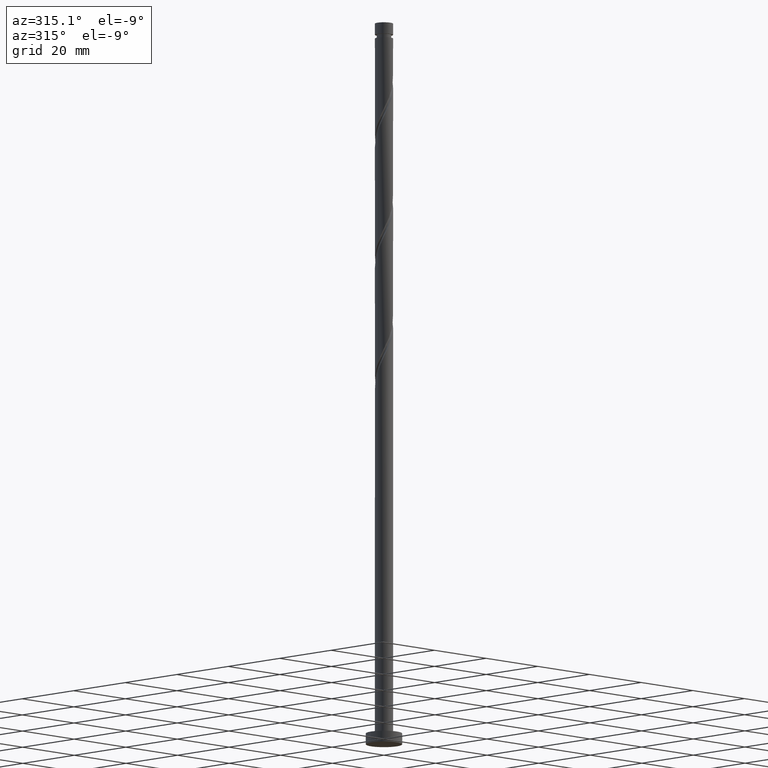
[diagram: clean part render]
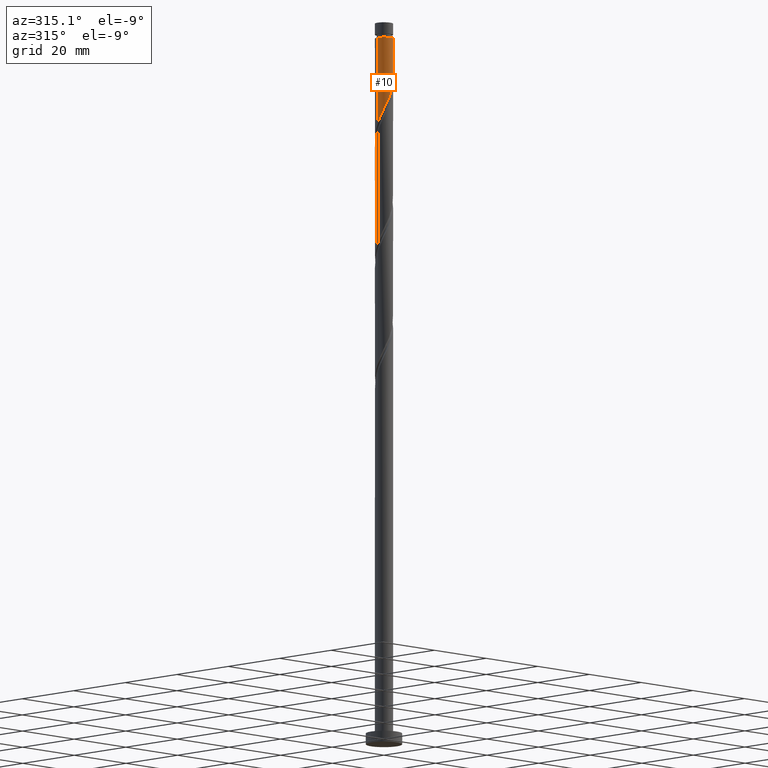
[diagram: same view with one face highlighted and labeled with its STEP entity id]
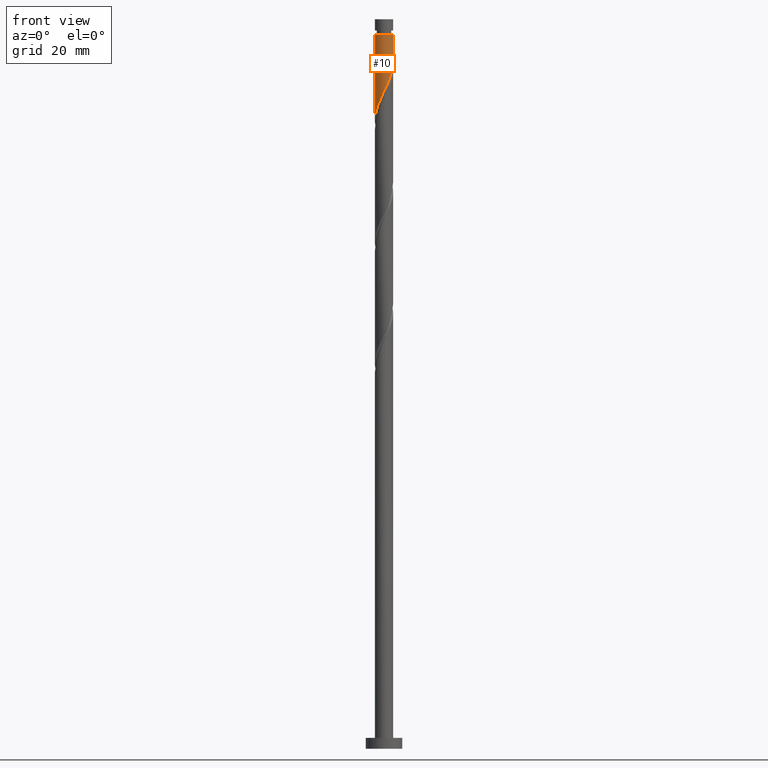
[diagram: same view with one face highlighted and labeled with its STEP entity id]
A machine part, auxiliary view. The second image highlights one B-rep face of the part: STEP entity #10.
A second angle (front view) of the same face is appended — the face is thin or edge-on in the first view.
In plain terms, the highlighted cylindrical surface (edge-blend (fillet) strip) has radius 2.5 mm, axis along (-0, -0, -1).
Its self-contained STEP definition (entity closure, byte-faithful):
#10 = ADVANCED_FACE ( 'NONE', ( #399 ), #950, .T. ) ;
#22 = VERTEX_POINT ( 'NONE', #278 ) ;
#144 = ORIENTED_EDGE ( 'NONE', *, *, #1530, .T. ) ;
#170 = CARTESIAN_POINT ( 'NONE',  ( -0.1749450994641920942, -2.515496290581585193, 179.9116340058108392 ) ) ;
#178 = CIRCLE ( 'NONE', #360, 2.499999999999988454 ) ;
#206 = EDGE_CURVE ( 'NONE', #1210, #407, #1741, .T. ) ;
#253 = AXIS2_PLACEMENT_3D ( 'NONE', #961, #1333, #1635 ) ;
#278 = CARTESIAN_POINT ( 'NONE',  ( -2.500000000000000444, -9.645190966134910391E-16, 171.9474228832430924 ) ) ;
#308 = CARTESIAN_POINT ( 'NONE',  ( 2.500000000000000444, 2.990756888724003558E-16, 188.6140895499097780 ) ) ;
#328 = CARTESIAN_POINT ( 'NONE',  ( -2.500000000000000444, -9.645190966134910391E-16, 171.9474228832430924 ) ) ;
#341 = CARTESIAN_POINT ( 'NONE',  ( -1.902429351286329728, -1.655019618953359473, 175.7449673391441252 ) ) ;
#355 = CARTESIAN_POINT ( 'NONE',  ( 2.500000000000000000, 3.061616997868383141E-16, 200.0000000000000000 ) ) ;
#356 = CARTESIAN_POINT ( 'NONE',  ( 2.499999999999988454, 3.061616997868375253E-16, 195.8838562280330393 ) ) ;
#360 = AXIS2_PLACEMENT_3D ( 'NONE', #1308, #1445, #489 ) ;
#399 = FACE_OUTER_BOUND ( 'NONE', #1320, .T. ) ;
#406 = CARTESIAN_POINT ( 'NONE',  ( 1.873015379995218721, -1.655842198490353967, 184.7727451169219535 ) ) ;
#407 = VERTEX_POINT ( 'NONE', #308 ) ;
#408 = LINE ( 'NONE', #1660, #671 ) ;
#409 = EDGE_CURVE ( 'NONE', #407, #22, #1558, .T. ) ;
#416 = CARTESIAN_POINT ( 'NONE',  ( 1.380630431920282231, -2.084192795893800021, 183.3838562280329825 ) ) ;
#489 = DIRECTION ( 'NONE',  ( -1.000000000000000000, 0.000000000000000000, 0.000000000000000000 ) ) ;
#530 = EDGE_CURVE ( 'NONE', #1210, #1474, #178, .T. ) ;
#549 = CARTESIAN_POINT ( 'NONE',  ( 2.449999999999999734, -0.4974937185533115924, 187.5505228946997249 ) ) ;
#556 = CARTESIAN_POINT ( 'NONE',  ( -0.8200423376424320621, -2.384503709418415163, 178.5227451169218966 ) ) ;
#587 = CARTESIAN_POINT ( 'NONE',  ( -2.370509098548530424, -0.7941578015096462106, 173.6616340058107824 ) ) ;
#641 = ORIENTED_EDGE ( 'NONE', *, *, #409, .F. ) ;
#671 = VECTOR ( 'NONE', #1624, 1000.000000000000000 ) ;
#694 = CARTESIAN_POINT ( 'NONE',  ( -0.4974937185533114814, -2.449999999999999734, 179.2171895613663821 ) ) ;
#756 = ORIENTED_EDGE ( 'NONE', *, *, #206, .F. ) ;
#847 = CARTESIAN_POINT ( 'NONE',  ( 2.500000000000000444, 2.990756888724003558E-16, 188.6140895499097780 ) ) ;
#880 = CARTESIAN_POINT ( 'NONE',  ( -1.655842198490353967, -1.873015379995218721, 176.4394117835886107 ) ) ;
#903 = DIRECTION ( 'NONE',  ( -0.000000000000000000, -0.000000000000000000, -1.000000000000000000 ) ) ;
#945 = CARTESIAN_POINT ( 'NONE',  ( 1.106241244887206321, -2.265956240501270980, 182.6894117835885822 ) ) ;
#950 = CYLINDRICAL_SURFACE ( 'NONE', #253, 2.500000000000000000 ) ;
#957 = CARTESIAN_POINT ( 'NONE',  ( 2.237757425227745234, -1.114648691668405522, 186.1616340058108108 ) ) ;
#961 = CARTESIAN_POINT ( 'NONE',  ( 0.000000000000000000, 0.000000000000000000, 200.0000000000000000 ) ) ;
#967 = CARTESIAN_POINT ( 'NONE',  ( 0.1535646293339464619, -2.495279123588686865, 180.6060784502552394 ) ) ;
#1011 = CARTESIAN_POINT ( 'NONE',  ( -2.084192795893799133, -1.380630431920282675, 175.0505228946997249 ) ) ;
#1078 = CARTESIAN_POINT ( 'NONE',  ( 1.655019618953359251, -1.902429351286329728, 184.0783006724774964 ) ) ;
#1097 = CARTESIAN_POINT ( 'NONE',  ( 0.4820743581320852122, -2.475061956595791646, 181.3005228946997249 ) ) ;
#1106 = CARTESIAN_POINT ( 'NONE',  ( -1.114648691668404634, -2.237757425227747010, 177.8283006724774964 ) ) ;
#1177 = ORIENTED_EDGE ( 'NONE', *, *, #530, .T. ) ;
#1210 = VERTEX_POINT ( 'NONE', #356 ) ;
#1260 = CARTESIAN_POINT ( 'NONE',  ( 2.384503709418414275, -0.8200423376424329502, 186.8560784502553531 ) ) ;
#1268 = CARTESIAN_POINT ( 'NONE',  ( -2.495279123588686865, -0.1535646293339473223, 172.2727451169218682 ) ) ;
#1295 = CARTESIAN_POINT ( 'NONE',  ( -2.499999999999988454, 0.000000000000000000, 195.8838562280330393 ) ) ;
#1308 = CARTESIAN_POINT ( 'NONE',  ( 0.000000000000000000, 0.000000000000000000, 195.8838562280330393 ) ) ;
#1320 = EDGE_LOOP ( 'NONE', ( #756, #1177, #144, #641 ) ) ;
#1333 = DIRECTION ( 'NONE',  ( -0.000000000000000000, -0.000000000000000000, -1.000000000000000000 ) ) ;
#1404 = CARTESIAN_POINT ( 'NONE',  ( -2.265956240501270980, -1.106241244887206321, 174.3560784502552679 ) ) ;
#1418 = CARTESIAN_POINT ( 'NONE',  ( -2.500000000000000444, -0.07685487914418158428, 172.1105865712711989 ) ) ;
#1445 = DIRECTION ( 'NONE',  ( -0.000000000000000000, -0.000000000000000000, -1.000000000000000000 ) ) ;
#1447 = VECTOR ( 'NONE', #903, 1000.000000000000000 ) ;
#1474 = VERTEX_POINT ( 'NONE', #1295 ) ;
#1508 = CARTESIAN_POINT ( 'NONE',  ( 0.7941578015096460996, -2.370509098548530869, 181.9949673391441252 ) ) ;
#1530 = EDGE_CURVE ( 'NONE', #1474, #22, #408, .T. ) ;
#1558 =( BOUNDED_CURVE ( )  B_SPLINE_CURVE ( 2, ( #847, #1640, #549, #1260, #957, #1650, #406, #1078, #416, #945, #1508, #1097, #967, #170, #694, #556, #1106, #1697, #880, #341, #1011, #1404, #587, #1564, #1268, #1418, #328 ),
 .UNSPECIFIED., .F., .T. ) 
 B_SPLINE_CURVE_WITH_KNOTS ( ( 3, 2, 2, 2, 2, 2, 2, 2, 2, 2, 2, 2, 2, 3 ),
 ( 0.3045317669814462391, 0.3125000000000000000, 0.3229166666666666852, 0.3333333333333333148, 0.3437500000000000000, 0.3541666666666666852, 0.3645833333333333148, 0.3750000000000000000, 0.3854166666666666852, 0.3958333333333333148, 0.4062500000000000000, 0.4166666666666666852, 0.4270833333333333148, 0.4295317669814462946 ),
 .UNSPECIFIED. ) 
 CURVE ( )  GEOMETRIC_REPRESENTATION_ITEM ( )  RATIONAL_B_SPLINE_CURVE ( ( 0.9062941362546487190, 0.9031415850403529122, 0.9090909090909282675, 0.9013135103398466352, 0.9090909090909282675, 0.9013135103398466352, 0.9090909090909282675, 0.9013135103398466352, 0.9090909090909282675, 0.9013135103398466352, 0.9090909090909282675, 0.9013135103398466352, 0.9090909090909282675, 0.9013135103398466352, 0.9090909090909282675, 0.9013135103398466352, 0.9090909090909282675, 0.9013135103398466352, 0.9090909090909282675, 0.9013135103398466352, 0.9090909090909282675, 0.9013135103398466352, 0.9090909090909282675, 0.9013135103398466352, 0.9090909090909282675, 0.9072628343904221015, 0.9062941362546487190 ) ) 
 REPRESENTATION_ITEM ( '' )  );
#1564 = CARTESIAN_POINT ( 'NONE',  ( -2.475061956595791202, -0.4820743581320859339, 172.9671895613663821 ) ) ;
#1624 = DIRECTION ( 'NONE',  ( -0.000000000000000000, -0.000000000000000000, -1.000000000000000000 ) ) ;
#1635 = DIRECTION ( 'NONE',  ( -1.000000000000000000, 0.000000000000000000, 0.000000000000000000 ) ) ;
#1640 = CARTESIAN_POINT ( 'NONE',  ( 2.500000000000000888, -0.2512594538148036905, 188.0806631807204496 ) ) ;
#1650 = CARTESIAN_POINT ( 'NONE',  ( 2.091011141037077081, -1.409255045694378206, 185.4671895613663537 ) ) ;
#1660 = CARTESIAN_POINT ( 'NONE',  ( -2.500000000000000000, 0.000000000000000000, 200.0000000000000000 ) ) ;
#1697 = CARTESIAN_POINT ( 'NONE',  ( -1.409255045694377539, -2.091011141037077969, 177.1338562280330677 ) ) ;
#1741 = LINE ( 'NONE', #355, #1447 ) ;